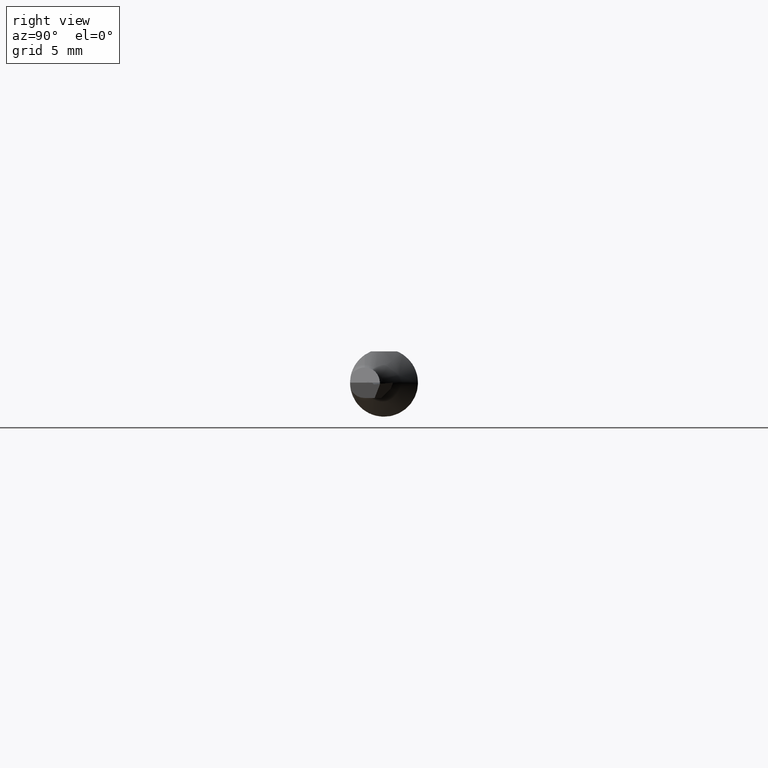
[diagram: clean part render]
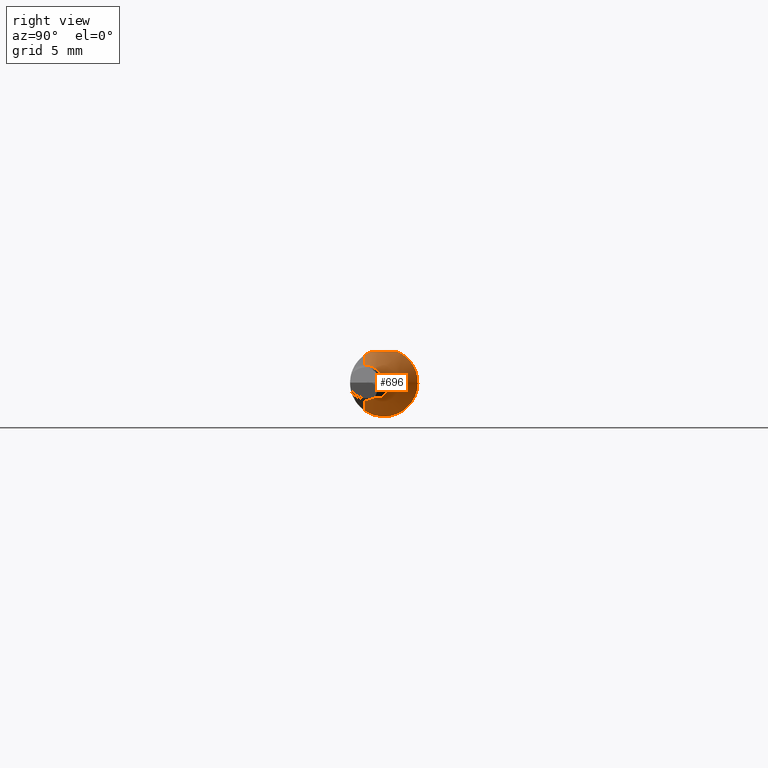
[diagram: same view with one face highlighted and labeled with its STEP entity id]
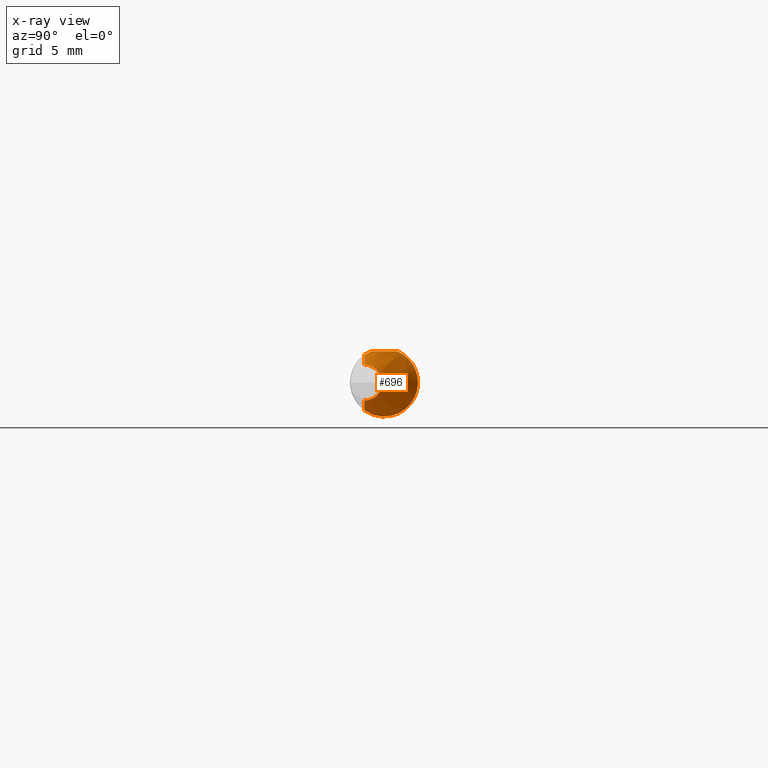
[diagram: x-ray of the same camera — body ghosted, the highlighted face saturated]
A machine part, right view. The second image highlights one B-rep face of the part: STEP entity #696.
The next image is the same camera in x-ray: the body ghosted, the highlighted face saturated — about 5% of this face is hidden behind the body in this view.
In plain terms, the highlighted conical surface has half-angle 45 deg.
Its self-contained STEP definition (entity closure, byte-faithful):
#11 = CARTESIAN_POINT ( 'NONE',  ( 1.490000000000000879, -0.05360000000000000875, 0.000000000000000000 ) ) ;
#18 = VECTOR ( 'NONE', #898, 39.37007874015748143 ) ;
#26 = EDGE_CURVE ( 'NONE', #470, #897, #535, .T. ) ;
#39 = DIRECTION ( 'NONE',  ( 0.000000000000000000, 0.000000000000000000, 1.000000000000000000 ) ) ;
#43 = ORIENTED_EDGE ( 'NONE', *, *, #745, .T. ) ;
#61 = CARTESIAN_POINT ( 'NONE',  ( 1.643532016763719739, -0.03551619348969495271, 0.08659999999999998255 ) ) ;
#64 = CARTESIAN_POINT ( 'NONE',  ( 1.592686412966955123, 0.07249166138048264429, 0.05959038732245774267 ) ) ;
#76 = EDGE_CURVE ( 'NONE', #260, #304, #528, .T. ) ;
#90 = CARTESIAN_POINT ( 'NONE',  ( 1.682677669529663911, -0.05360000000000000875, 0.04932233047033641321 ) ) ;
#96 = AXIS2_PLACEMENT_3D ( 'NONE', #11, #820, #39 ) ;
#119 = CARTESIAN_POINT ( 'NONE',  ( 1.642183954393337197, -0.02892132315015387423, 0.08659999999999996867 ) ) ;
#130 = CARTESIAN_POINT ( 'NONE',  ( 1.588748490882201159, 0.08288450723913580453, -0.04401287222825069068 ) ) ;
#136 = CARTESIAN_POINT ( 'NONE',  ( 1.605145747846598248, 0.04152393587091608024, 0.08413611846597424115 ) ) ;
#177 = CARTESIAN_POINT ( 'NONE',  ( 1.647441566857823281, -0.04196899222461395601, 0.08395359297438403923 ) ) ;
#189 = LINE ( 'NONE', #268, #18 ) ;
#192 = CARTESIAN_POINT ( 'NONE',  ( 1.615537673577814193, 0.02463921052027019318, 0.08660000000000001030 ) ) ;
#195 = CARTESIAN_POINT ( 'NONE',  ( 1.587619877663365875, 0.08592338530824539244, -0.03774812721615193600 ) ) ;
#200 = CARTESIAN_POINT ( 'NONE',  ( 1.588468871594833187, 0.08363337984157995231, 0.04257809132454690171 ) ) ;
#202 = B_SPLINE_CURVE_WITH_KNOTS ( 'NONE', 3,
 ( #693, #854, #282, #1003, #547, #708, #935, #765, #277, #612, #468, #212, #780, #130, #195, #784, #289, #930, #605, #849, #447, #703, #200, #622, #64, #384, #939, #923, #136, #845 ),
 .UNSPECIFIED., .F., .F.,
 ( 4, 2, 2, 2, 2, 2, 2, 2, 2, 2, 2, 2, 2, 2, 4 ),
 ( 0.002058782231661807245, 0.003113147971076603814, 0.004167513710491399515, 0.004694696580198798666, 0.005221879449906196083, 0.005749062319613593500, 0.006276245189320990917, 0.006803428059028388333, 0.007330610928735785750, 0.007857793798443183167, 0.008384976668150578849, 0.008912159537857976266, 0.009439342407565375417, 0.009966525277272771099, 0.01049370814698016852 ),
 .UNSPECIFIED. ) ;
#203 = CARTESIAN_POINT ( 'NONE',  ( 1.632337638380980893, -0.004029545949486718244, 0.08659999999999998255 ) ) ;
#212 = CARTESIAN_POINT ( 'NONE',  ( 1.593061454468120752, 0.07151733861755629751, -0.06075228721337560395 ) ) ;
#260 = VERTEX_POINT ( 'NONE', #90 ) ;
#268 = CARTESIAN_POINT ( 'NONE',  ( 1.490000000000000879, -0.05359999999999998793, -0.2419999999999999651 ) ) ;
#277 = CARTESIAN_POINT ( 'NONE',  ( 1.603233516757745392, 0.04610023755995056038, -0.08171951638444602262 ) ) ;
#282 = CARTESIAN_POINT ( 'NONE',  ( 1.641505337636526507, -0.03252922832486425386, -0.08859576026076432242 ) ) ;
#289 = CARTESIAN_POINT ( 'NONE',  ( 1.585347330751994743, 0.09209881956665141867, -0.01808940311156598604 ) ) ;
#304 = VERTEX_POINT ( 'NONE', #755 ) ;
#307 = EDGE_CURVE ( 'NONE', #897, #352, #433, .T. ) ;
#318 = AXIS2_PLACEMENT_3D ( 'NONE', #461, #536, #608 ) ;
#344 = CARTESIAN_POINT ( 'NONE',  ( 1.651348737428021352, -0.04799108434696518904, 0.08065126257197871573 ) ) ;
#347 = ORIENTED_EDGE ( 'NONE', *, *, #964, .F. ) ;
#351 = ORIENTED_EDGE ( 'NONE', *, *, #76, .T. ) ;
#352 = VERTEX_POINT ( 'NONE', #985 ) ;
#384 = CARTESIAN_POINT ( 'NONE',  ( 1.596291649173444460, 0.06324241653019845033, 0.06932857983807230728 ) ) ;
#387 = CARTESIAN_POINT ( 'NONE',  ( 1.607737149790860132, 0.03551619348973097251, 0.08659999999999998255 ) ) ;
#399 = CARTESIAN_POINT ( 'NONE',  ( 1.655266695626996576, -0.05360000000000007120, -0.07673330437300346363 ) ) ;
#423 = CONICAL_SURFACE ( 'NONE', #96, 0.2419999999999999651, 0.7853981633974501664 ) ;
#433 = B_SPLINE_CURVE_WITH_KNOTS ( 'NONE', 3,
 ( #750, #177, #344, #587 ),
 .UNSPECIFIED., .F., .F.,
 ( 4, 4 ),
 ( 5.958275938029966699E-07, 0.0006012079309635458150 ),
 .UNSPECIFIED. ) ;
#447 = CARTESIAN_POINT ( 'NONE',  ( 1.585777751289731530, 0.09091771725228045553, 0.02327984984785655409 ) ) ;
#461 = CARTESIAN_POINT ( 'NONE',  ( 1.682677669529663911, -0.05360000000000000875, 0.000000000000000000 ) ) ;
#468 = CARTESIAN_POINT ( 'NONE',  ( 1.596716989839071399, 0.06216634424897091865, -0.07029164792002763618 ) ) ;
#470 = VERTEX_POINT ( 'NONE', #387 ) ;
#528 = CIRCLE ( 'NONE', #318, 0.04932233047033641321 ) ;
#530 = CARTESIAN_POINT ( 'NONE',  ( 1.622893990646809392, 0.01349229197273295149, 0.08660000000000001030 ) ) ;
#535 = B_SPLINE_CURVE_WITH_KNOTS ( 'NONE', 3,
 ( #541, #192, #530, #203, #842, #757, #119, #763 ),
 .UNSPECIFIED., .F., .F.,
 ( 4, 2, 2, 4 ),
 ( 0.004258300968951056996, 0.005277503982789574777, 0.005787105489708838438, 0.006296706996628102099 ),
 .UNSPECIFIED. ) ;
#536 = DIRECTION ( 'NONE',  ( -1.000000000000000000, -0.000000000000000000, -0.000000000000000000 ) ) ;
#541 = CARTESIAN_POINT ( 'NONE',  ( 1.607737149790860132, 0.03551619348973097251, 0.08659999999999998255 ) ) ;
#547 = CARTESIAN_POINT ( 'NONE',  ( 1.622144613202565422, 0.003747197657370836439, -0.09435565053858832596 ) ) ;
#587 = CARTESIAN_POINT ( 'NONE',  ( 1.655266695626996576, -0.05360000000000007120, 0.07673330437300346363 ) ) ;
#593 = ORIENTED_EDGE ( 'NONE', *, *, #26, .T. ) ;
#605 = CARTESIAN_POINT ( 'NONE',  ( 1.584720111197745140, 0.09381884038610417698, 0.002633421613979642674 ) ) ;
#607 = VECTOR ( 'NONE', #946, 39.37007874015748143 ) ;
#608 = DIRECTION ( 'NONE',  ( 0.000000000000000000, 0.000000000000000000, 1.000000000000000000 ) ) ;
#612 = CARTESIAN_POINT ( 'NONE',  ( 1.598787511741458056, 0.05696553440187637068, -0.07455359918542001085 ) ) ;
#622 = CARTESIAN_POINT ( 'NONE',  ( 1.591127068158568081, 0.07658112335221455014, 0.05424728224234229290 ) ) ;
#631 = CARTESIAN_POINT ( 'NONE',  ( 1.490000000000000879, -0.05360000000000000875, 0.2419999999999999651 ) ) ;
#668 = EDGE_LOOP ( 'NONE', ( #351, #43, #783, #593, #901, #347 ) ) ;
#693 = CARTESIAN_POINT ( 'NONE',  ( 1.655266695626996576, -0.05360000000000007120, -0.07673330437300346363 ) ) ;
#696 = ADVANCED_FACE ( 'NONE', ( #733 ), #423, .T. ) ;
#703 = CARTESIAN_POINT ( 'NONE',  ( 1.587386139853655509, 0.08655412143640968392, 0.03628176927432850973 ) ) ;
#708 = CARTESIAN_POINT ( 'NONE',  ( 1.613581935819068613, 0.02220868768165350574, -0.09114138336216801028 ) ) ;
#733 = FACE_OUTER_BOUND ( 'NONE', #668, .T. ) ;
#745 = EDGE_CURVE ( 'NONE', #304, #922, #189, .T. ) ;
#750 = CARTESIAN_POINT ( 'NONE',  ( 1.643532016763719739, -0.03551619348969495271, 0.08659999999999998255 ) ) ;
#755 = CARTESIAN_POINT ( 'NONE',  ( 1.682677669529663911, -0.05359999999999999487, -0.04932233047033641321 ) ) ;
#757 = CARTESIAN_POINT ( 'NONE',  ( 1.640130946399818157, -0.02241082931180947424, 0.08659999999999996867 ) ) ;
#763 = CARTESIAN_POINT ( 'NONE',  ( 1.643532016763719739, -0.03551619348969495271, 0.08659999999999998255 ) ) ;
#765 = CARTESIAN_POINT ( 'NONE',  ( 1.605632438950439722, 0.04037388648616935943, -0.08469102550447793476 ) ) ;
#780 = CARTESIAN_POINT ( 'NONE',  ( 1.591472964036102500, 0.07567231481629736745, -0.05550383079029641564 ) ) ;
#783 = ORIENTED_EDGE ( 'NONE', *, *, #881, .T. ) ;
#784 = CARTESIAN_POINT ( 'NONE',  ( 1.585931303237886114, 0.09049842679929974432, -0.02485526097243349886 ) ) ;
#811 = LINE ( 'NONE', #631, #607 ) ;
#820 = DIRECTION ( 'NONE',  ( -1.000000000000000000, -0.000000000000000000, -0.000000000000000000 ) ) ;
#842 = CARTESIAN_POINT ( 'NONE',  ( 1.635215752939033873, -0.01001064535941997326, 0.08660000000000001030 ) ) ;
#845 = CARTESIAN_POINT ( 'NONE',  ( 1.607737149790860132, 0.03551619348973097251, 0.08659999999999998255 ) ) ;
#849 = CARTESIAN_POINT ( 'NONE',  ( 1.585233750037414291, 0.09240994563307741716, 0.01641071810987997440 ) ) ;
#854 = CARTESIAN_POINT ( 'NONE',  ( 1.648415851863906267, -0.04379239030438169394, -0.08358414813609432725 ) ) ;
#881 = EDGE_CURVE ( 'NONE', #922, #470, #202, .T. ) ;
#897 = VERTEX_POINT ( 'NONE', #61 ) ;
#898 = DIRECTION ( 'NONE',  ( -0.7071067811865462405, 8.659560562354948882E-17, -0.7071067811865487940 ) ) ;
#901 = ORIENTED_EDGE ( 'NONE', *, *, #307, .T. ) ;
#922 = VERTEX_POINT ( 'NONE', #399 ) ;
#923 = CARTESIAN_POINT ( 'NONE',  ( 1.602732928719614147, 0.04730590892803967357, 0.08103057034043389950 ) ) ;
#930 = CARTESIAN_POINT ( 'NONE',  ( 1.584740898497718931, 0.09376148353768069821, -0.004266529657294735808 ) ) ;
#935 = CARTESIAN_POINT ( 'NONE',  ( 1.610832382910494021, 0.02836671247063497422, -0.08943125926993614194 ) ) ;
#939 = CARTESIAN_POINT ( 'NONE',  ( 1.598322812928604453, 0.05812320954289580677, 0.07365795857635897004 ) ) ;
#946 = DIRECTION ( 'NONE',  ( -0.7071067811865462405, 0.000000000000000000, 0.7071067811865487940 ) ) ;
#964 = EDGE_CURVE ( 'NONE', #260, #352, #811, .T. ) ;
#985 = CARTESIAN_POINT ( 'NONE',  ( 1.655266695626996576, -0.05360000000000007120, 0.07673330437300346363 ) ) ;
#1003 = CARTESIAN_POINT ( 'NONE',  ( 1.628467363452695160, -0.008931066812204169897, -0.09395528445590446698 ) ) ;